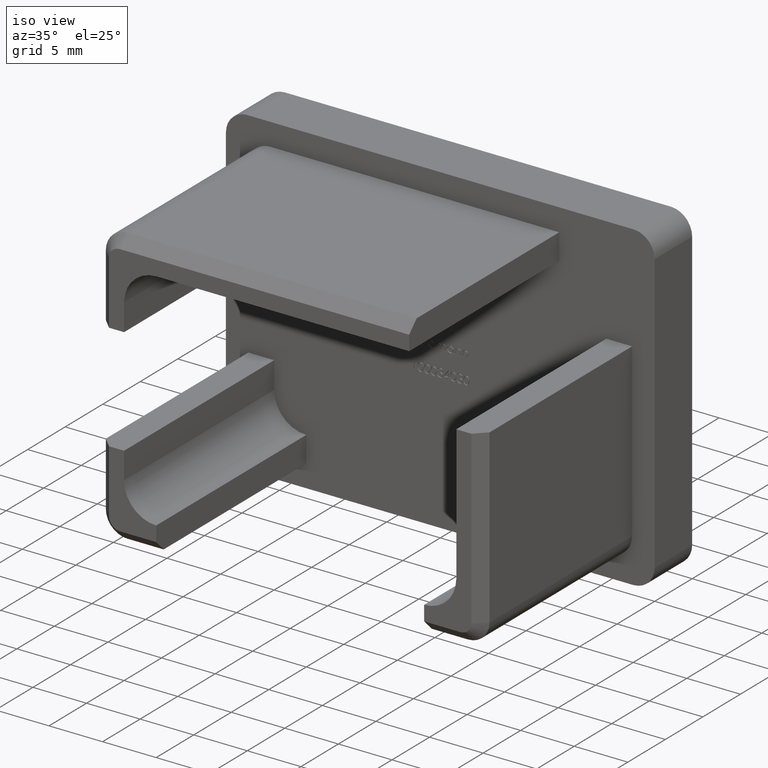
[diagram: clean part render]
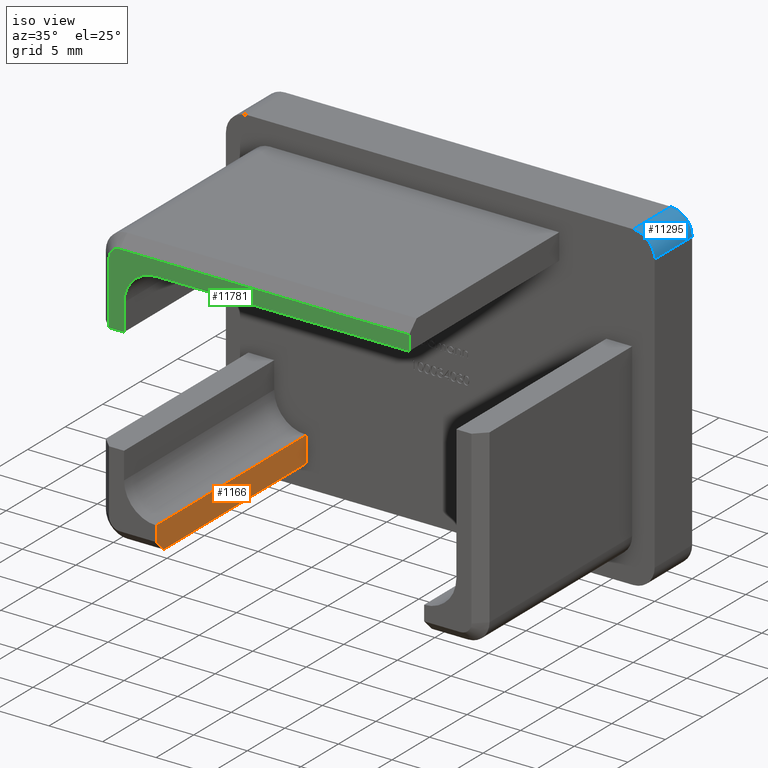
[diagram: same view with three faces highlighted in distinct colors, each labeled with its STEP entity id]
A machine part, iso view with three faces highlighted in distinct colors.
Their STEP definitions:

[orange] entity #1166 — the highlighted planar face has unit normal (-1, 0, 0).
#497 = CARTESIAN_POINT ( 'NONE',  ( -12.49999999999999600, -18.99999999999999300, -12.89999999999999900 ) ) ;
#624 = VERTEX_POINT ( 'NONE', #11461 ) ;
#669 = DIRECTION ( 'NONE',  ( 0.0000000000000000000, 0.0000000000000000000, 1.000000000000000000 ) ) ;
#849 = LINE ( 'NONE', #6433, #2898 ) ;
#1166 = ADVANCED_FACE ( 'NONE', ( #12030 ), #10924, .F. ) ;
#1819 = ORIENTED_EDGE ( 'NONE', *, *, #15307, .T. ) ;
#2755 = CARTESIAN_POINT ( 'NONE',  ( -12.49999999999999600, -20.00000000000000000, -10.49999999999999800 ) ) ;
#2821 = CARTESIAN_POINT ( 'NONE',  ( -12.49999999999999600, -20.00000000000000000, -12.89999999999999900 ) ) ;
#2898 = VECTOR ( 'NONE', #669, 1000.000000000000000 ) ;
#3252 = VERTEX_POINT ( 'NONE', #497 ) ;
#3725 = DIRECTION ( 'NONE',  ( 0.0000000000000000000, 0.0000000000000000000, 1.000000000000000000 ) ) ;
#3856 = VERTEX_POINT ( 'NONE', #11210 ) ;
#3900 = LINE ( 'NONE', #10886, #12354 ) ;
#4065 = VERTEX_POINT ( 'NONE', #4974 ) ;
#4268 = DIRECTION ( 'NONE',  ( 0.0000000000000000000, 0.0000000000000000000, 1.000000000000000000 ) ) ;
#4974 = CARTESIAN_POINT ( 'NONE',  ( -12.49999999999999600, -20.00000000000000000, -11.89999999999999300 ) ) ;
#4995 = LINE ( 'NONE', #2821, #9698 ) ;
#5371 = VERTEX_POINT ( 'NONE', #2755 ) ;
#5706 = LINE ( 'NONE', #12649, #11889 ) ;
#6037 = DIRECTION ( 'NONE',  ( 0.0000000000000000000, 0.7071067811865487900, -0.7071067811865463500 ) ) ;
#6100 = AXIS2_PLACEMENT_3D ( 'NONE', #6138, #14446, #3725 ) ;
#6138 = CARTESIAN_POINT ( 'NONE',  ( -12.49999999999999600, -20.00000000000000000, -12.89999999999999900 ) ) ;
#6190 = EDGE_CURVE ( 'NONE', #4065, #3252, #3900, .T. ) ;
#6433 = CARTESIAN_POINT ( 'NONE',  ( -12.49999999999999600, -20.00000000000000000, -12.89999999999999900 ) ) ;
#7947 = EDGE_LOOP ( 'NONE', ( #9262, #10585, #1819, #11238, #15123 ) ) ;
#9259 = EDGE_CURVE ( 'NONE', #4065, #5371, #849, .T. ) ;
#9262 = ORIENTED_EDGE ( 'NONE', *, *, #9259, .F. ) ;
#9698 = VECTOR ( 'NONE', #14863, 1000.000000000000000 ) ;
#10138 = VECTOR ( 'NONE', #14115, 1000.000000000000000 ) ;
#10585 = ORIENTED_EDGE ( 'NONE', *, *, #6190, .T. ) ;
#10618 = EDGE_CURVE ( 'NONE', #3856, #624, #5706, .T. ) ;
#10886 = CARTESIAN_POINT ( 'NONE',  ( -12.49999999999999600, -20.00000000000000000, -11.89999999999999300 ) ) ;
#10924 = PLANE ( 'NONE',  #6100 ) ;
#11210 = CARTESIAN_POINT ( 'NONE',  ( -12.49999999999999600, 0.0000000000000000000, -12.89999999999999900 ) ) ;
#11238 = ORIENTED_EDGE ( 'NONE', *, *, #10618, .T. ) ;
#11461 = CARTESIAN_POINT ( 'NONE',  ( -12.49999999999999600, 0.0000000000000000000, -10.49999999999999800 ) ) ;
#11889 = VECTOR ( 'NONE', #4268, 1000.000000000000000 ) ;
#11891 = EDGE_CURVE ( 'NONE', #5371, #624, #15351, .T. ) ;
#12030 = FACE_OUTER_BOUND ( 'NONE', #7947, .T. ) ;
#12354 = VECTOR ( 'NONE', #6037, 1000.000000000000000 ) ;
#12649 = CARTESIAN_POINT ( 'NONE',  ( -12.49999999999999600, -0.0000000000000000000, -12.89999999999999900 ) ) ;
#13018 = CARTESIAN_POINT ( 'NONE',  ( -12.49999999999999600, -20.00000000000000000, -10.49999999999999800 ) ) ;
#14115 = DIRECTION ( 'NONE',  ( -0.0000000000000000000, 1.000000000000000000, -0.0000000000000000000 ) ) ;
#14446 = DIRECTION ( 'NONE',  ( -1.000000000000000000, 0.0000000000000000000, 0.0000000000000000000 ) ) ;
#14863 = DIRECTION ( 'NONE',  ( -0.0000000000000000000, 1.000000000000000000, -0.0000000000000000000 ) ) ;
#15123 = ORIENTED_EDGE ( 'NONE', *, *, #11891, .F. ) ;
#15307 = EDGE_CURVE ( 'NONE', #3252, #3856, #4995, .T. ) ;
#15351 = LINE ( 'NONE', #13018, #10138 ) ;

[blue] entity #11295 — the highlighted cylindrical surface (edge-blend (fillet) strip) has radius 2 mm, axis along (0, -1, 0).
#585 = CARTESIAN_POINT ( 'NONE',  ( 17.99999999999999600, 5.000000000000000000, 14.99999999999999600 ) ) ;
#721 = EDGE_LOOP ( 'NONE', ( #8903, #13417, #15233, #6642 ) ) ;
#1906 = EDGE_CURVE ( 'NONE', #12347, #8486, #14823, .T. ) ;
#2060 = AXIS2_PLACEMENT_3D ( 'NONE', #11432, #9060, #7894 ) ;
#2810 = AXIS2_PLACEMENT_3D ( 'NONE', #2937, #10358, #14995 ) ;
#2937 = CARTESIAN_POINT ( 'NONE',  ( 17.99999999999999600, 5.000000000000000000, 12.99999999999999500 ) ) ;
#3450 = DIRECTION ( 'NONE',  ( 0.0000000000000000000, -1.000000000000000000, 0.0000000000000000000 ) ) ;
#4920 = VERTEX_POINT ( 'NONE', #11743 ) ;
#5692 = VERTEX_POINT ( 'NONE', #12172 ) ;
#6642 = ORIENTED_EDGE ( 'NONE', *, *, #15114, .F. ) ;
#7068 = CARTESIAN_POINT ( 'NONE',  ( 19.99999999999999600, 5.000000000000000000, 12.99999999999999500 ) ) ;
#7894 = DIRECTION ( 'NONE',  ( 0.0000000000000000000, 0.0000000000000000000, 1.000000000000000000 ) ) ;
#8486 = VERTEX_POINT ( 'NONE', #7068 ) ;
#8903 = ORIENTED_EDGE ( 'NONE', *, *, #1906, .F. ) ;
#9060 = DIRECTION ( 'NONE',  ( -0.0000000000000000000, -1.000000000000000000, -0.0000000000000000000 ) ) ;
#9086 = CARTESIAN_POINT ( 'NONE',  ( 17.99999999999999600, 5.000000000000000000, 12.99999999999999500 ) ) ;
#10329 = CYLINDRICAL_SURFACE ( 'NONE', #2810, 2.000000000000000000 ) ;
#10358 = DIRECTION ( 'NONE',  ( 0.0000000000000000000, -1.000000000000000000, 0.0000000000000000000 ) ) ;
#10655 = CIRCLE ( 'NONE', #2060, 2.000000000000000000 ) ;
#10660 = CARTESIAN_POINT ( 'NONE',  ( 19.99999999999999600, 5.000000000000000000, 12.99999999999999500 ) ) ;
#11085 = FACE_OUTER_BOUND ( 'NONE', #721, .T. ) ;
#11295 = ADVANCED_FACE ( 'NONE', ( #11085 ), #10329, .T. ) ;
#11432 = CARTESIAN_POINT ( 'NONE',  ( 17.99999999999999600, 0.0000000000000000000, 12.99999999999999500 ) ) ;
#11443 = AXIS2_PLACEMENT_3D ( 'NONE', #9086, #12695, #13987 ) ;
#11624 = EDGE_CURVE ( 'NONE', #4920, #12347, #12926, .T. ) ;
#11743 = CARTESIAN_POINT ( 'NONE',  ( 17.99999999999999600, 0.0000000000000000000, 14.99999999999999600 ) ) ;
#12172 = CARTESIAN_POINT ( 'NONE',  ( 19.99999999999999600, 0.0000000000000000000, 12.99999999999999500 ) ) ;
#12347 = VERTEX_POINT ( 'NONE', #13538 ) ;
#12427 = DIRECTION ( 'NONE',  ( -0.0000000000000000000, 1.000000000000000000, -0.0000000000000000000 ) ) ;
#12567 = VECTOR ( 'NONE', #12427, 1000.000000000000000 ) ;
#12680 = LINE ( 'NONE', #10660, #13045 ) ;
#12695 = DIRECTION ( 'NONE',  ( 0.0000000000000000000, 1.000000000000000000, 0.0000000000000000000 ) ) ;
#12926 = LINE ( 'NONE', #585, #12567 ) ;
#13045 = VECTOR ( 'NONE', #3450, 1000.000000000000000 ) ;
#13417 = ORIENTED_EDGE ( 'NONE', *, *, #11624, .F. ) ;
#13538 = CARTESIAN_POINT ( 'NONE',  ( 17.99999999999999600, 5.000000000000000000, 14.99999999999999600 ) ) ;
#13987 = DIRECTION ( 'NONE',  ( 0.0000000000000000000, 0.0000000000000000000, 1.000000000000000000 ) ) ;
#14422 = EDGE_CURVE ( 'NONE', #5692, #4920, #10655, .T. ) ;
#14823 = CIRCLE ( 'NONE', #11443, 2.000000000000000000 ) ;
#14995 = DIRECTION ( 'NONE',  ( 0.0000000000000000000, 0.0000000000000000000, -1.000000000000000000 ) ) ;
#15114 = EDGE_CURVE ( 'NONE', #8486, #5692, #12680, .T. ) ;
#15233 = ORIENTED_EDGE ( 'NONE', *, *, #14422, .F. ) ;

[green] entity #11781 — the highlighted planar face has unit normal (0, -1, 0).
#37 = CARTESIAN_POINT ( 'NONE',  ( -15.50000000000000900, -20.00000000000000000, 7.500000000000000000 ) ) ;
#361 = VERTEX_POINT ( 'NONE', #11919 ) ;
#404 = CARTESIAN_POINT ( 'NONE',  ( 11.09999999999999800, -20.00000000000000000, 11.89999999999999300 ) ) ;
#796 = EDGE_CURVE ( 'NONE', #7743, #2486, #5836, .T. ) ;
#981 = EDGE_CURVE ( 'NONE', #3238, #14738, #7902, .T. ) ;
#1078 = VERTEX_POINT ( 'NONE', #37 ) ;
#1129 = LINE ( 'NONE', #14885, #13505 ) ;
#1231 = ORIENTED_EDGE ( 'NONE', *, *, #796, .T. ) ;
#1356 = CARTESIAN_POINT ( 'NONE',  ( 11.09999999999999800, -20.00000000000000000, 10.49999999999999500 ) ) ;
#1394 = EDGE_CURVE ( 'NONE', #9084, #3421, #12947, .T. ) ;
#1745 = DIRECTION ( 'NONE',  ( 1.000000000000000000, 0.0000000000000000000, 0.0000000000000000000 ) ) ;
#1830 = CARTESIAN_POINT ( 'NONE',  ( -15.50000000000000400, -20.00000000000000000, 10.49999999999999500 ) ) ;
#1930 = EDGE_LOOP ( 'NONE', ( #1231, #8680, #14266, #11203, #3247, #3263, #15471, #15050 ) ) ;
#2194 = LINE ( 'NONE', #11805, #5232 ) ;
#2327 = VECTOR ( 'NONE', #13912, 1000.000000000000000 ) ;
#2365 = DIRECTION ( 'NONE',  ( 0.0000000000000000000, 0.0000000000000000000, -1.000000000000000000 ) ) ;
#2486 = VERTEX_POINT ( 'NONE', #404 ) ;
#2761 = CARTESIAN_POINT ( 'NONE',  ( 11.09999999999999800, -20.00000000000000000, 10.49999999999999500 ) ) ;
#3238 = VERTEX_POINT ( 'NONE', #13532 ) ;
#3247 = ORIENTED_EDGE ( 'NONE', *, *, #1394, .T. ) ;
#3263 = ORIENTED_EDGE ( 'NONE', *, *, #10135, .T. ) ;
#3268 = EDGE_CURVE ( 'NONE', #361, #7743, #1129, .T. ) ;
#3421 = VERTEX_POINT ( 'NONE', #6962 ) ;
#3630 = CARTESIAN_POINT ( 'NONE',  ( -15.90000000000000700, -20.00000000000000000, 10.89999999999999500 ) ) ;
#3979 = DIRECTION ( 'NONE',  ( 0.0000000000000000000, 0.0000000000000000000, -1.000000000000000000 ) ) ;
#5232 = VECTOR ( 'NONE', #11906, 1000.000000000000000 ) ;
#5325 = DIRECTION ( 'NONE',  ( 0.0000000000000000000, 0.0000000000000000000, 1.000000000000000000 ) ) ;
#5836 = LINE ( 'NONE', #2761, #10373 ) ;
#6224 = EDGE_CURVE ( 'NONE', #1078, #361, #15503, .T. ) ;
#6550 = FACE_OUTER_BOUND ( 'NONE', #1930, .T. ) ;
#6782 = LINE ( 'NONE', #11807, #7726 ) ;
#6962 = CARTESIAN_POINT ( 'NONE',  ( -15.50000000000001200, -20.00000000000000000, 4.999999999999994700 ) ) ;
#7325 = EDGE_CURVE ( 'NONE', #14738, #9084, #6782, .T. ) ;
#7404 = AXIS2_PLACEMENT_3D ( 'NONE', #3630, #15417, #2365 ) ;
#7726 = VECTOR ( 'NONE', #14150, 1000.000000000000000 ) ;
#7743 = VERTEX_POINT ( 'NONE', #1356 ) ;
#7902 = CIRCLE ( 'NONE', #7404, 0.9999999999999974500 ) ;
#8680 = ORIENTED_EDGE ( 'NONE', *, *, #12912, .T. ) ;
#8758 = CARTESIAN_POINT ( 'NONE',  ( 0.0000000000000000000, -20.00000000000000000, 0.0000000000000000000 ) ) ;
#9084 = VERTEX_POINT ( 'NONE', #9691 ) ;
#9139 = AXIS2_PLACEMENT_3D ( 'NONE', #11963, #9444, #10673 ) ;
#9444 = DIRECTION ( 'NONE',  ( -0.0000000000000000000, 1.000000000000000000, 0.0000000000000000000 ) ) ;
#9682 = CARTESIAN_POINT ( 'NONE',  ( -16.90000000000000900, -20.00000000000000000, 10.89999999999999500 ) ) ;
#9691 = CARTESIAN_POINT ( 'NONE',  ( -16.90000000000000900, -20.00000000000000000, 4.999999999999994700 ) ) ;
#9976 = DIRECTION ( 'NONE',  ( 0.0000000000000000000, -1.000000000000000000, 0.0000000000000000000 ) ) ;
#10135 = EDGE_CURVE ( 'NONE', #3421, #1078, #15099, .T. ) ;
#10169 = VECTOR ( 'NONE', #14049, 1000.000000000000000 ) ;
#10367 = AXIS2_PLACEMENT_3D ( 'NONE', #8758, #9976, #3979 ) ;
#10373 = VECTOR ( 'NONE', #5325, 1000.000000000000000 ) ;
#10673 = DIRECTION ( 'NONE',  ( 0.0000000000000000000, 0.0000000000000000000, -1.000000000000000000 ) ) ;
#11203 = ORIENTED_EDGE ( 'NONE', *, *, #7325, .T. ) ;
#11781 = ADVANCED_FACE ( 'NONE', ( #6550 ), #12330, .T. ) ;
#11805 = CARTESIAN_POINT ( 'NONE',  ( -15.90000000000000700, -20.00000000000000000, 11.89999999999999300 ) ) ;
#11807 = CARTESIAN_POINT ( 'NONE',  ( -16.90000000000001300, -20.00000000000000000, 4.999999999999993800 ) ) ;
#11906 = DIRECTION ( 'NONE',  ( -1.000000000000000000, 0.0000000000000000000, 0.0000000000000000000 ) ) ;
#11919 = CARTESIAN_POINT ( 'NONE',  ( -12.50000000000000900, -20.00000000000000000, 10.49999999999999500 ) ) ;
#11963 = CARTESIAN_POINT ( 'NONE',  ( -12.50000000000000900, -20.00000000000000000, 7.499999999999995600 ) ) ;
#12330 = PLANE ( 'NONE',  #10367 ) ;
#12903 = CARTESIAN_POINT ( 'NONE',  ( -17.90000000000000900, -20.00000000000000000, 4.999999999999994700 ) ) ;
#12912 = EDGE_CURVE ( 'NONE', #2486, #3238, #2194, .T. ) ;
#12947 = LINE ( 'NONE', #12903, #10169 ) ;
#13505 = VECTOR ( 'NONE', #1745, 1000.000000000000000 ) ;
#13532 = CARTESIAN_POINT ( 'NONE',  ( -15.90000000000000700, -20.00000000000000000, 11.89999999999999100 ) ) ;
#13912 = DIRECTION ( 'NONE',  ( 1.577021341797097200E-015, -0.0000000000000000000, 1.000000000000000000 ) ) ;
#14049 = DIRECTION ( 'NONE',  ( 1.000000000000000000, 0.0000000000000000000, 0.0000000000000000000 ) ) ;
#14150 = DIRECTION ( 'NONE',  ( -8.783410004945858200E-016, 0.0000000000000000000, -1.000000000000000000 ) ) ;
#14266 = ORIENTED_EDGE ( 'NONE', *, *, #981, .T. ) ;
#14738 = VERTEX_POINT ( 'NONE', #9682 ) ;
#14885 = CARTESIAN_POINT ( 'NONE',  ( -15.50000000000000400, -20.00000000000000000, 10.49999999999999500 ) ) ;
#15050 = ORIENTED_EDGE ( 'NONE', *, *, #3268, .T. ) ;
#15099 = LINE ( 'NONE', #1830, #2327 ) ;
#15417 = DIRECTION ( 'NONE',  ( 0.0000000000000000000, -1.000000000000000000, -0.0000000000000000000 ) ) ;
#15471 = ORIENTED_EDGE ( 'NONE', *, *, #6224, .T. ) ;
#15503 = CIRCLE ( 'NONE', #9139, 3.000000000000000000 ) ;